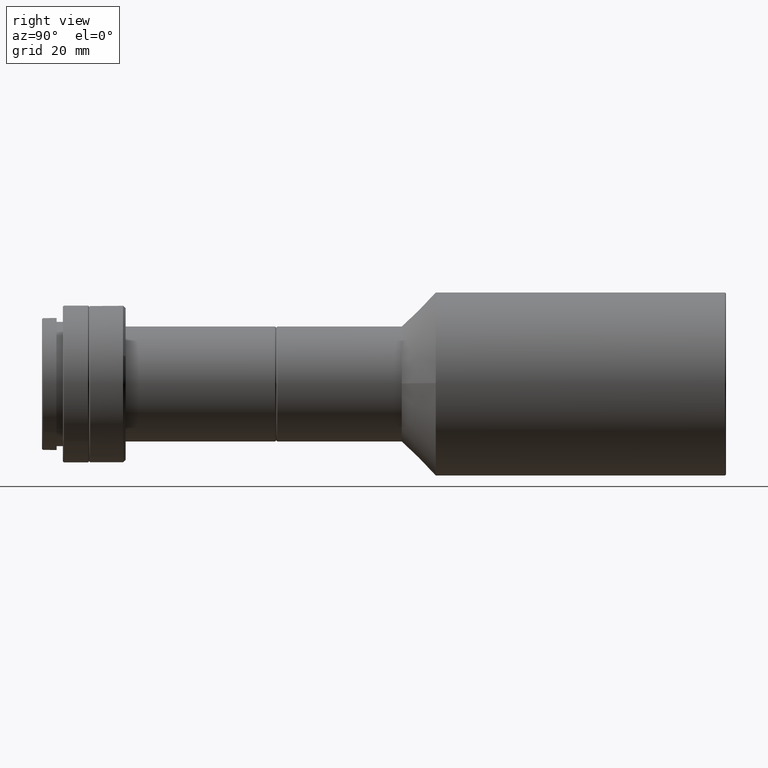
[diagram: clean part render]
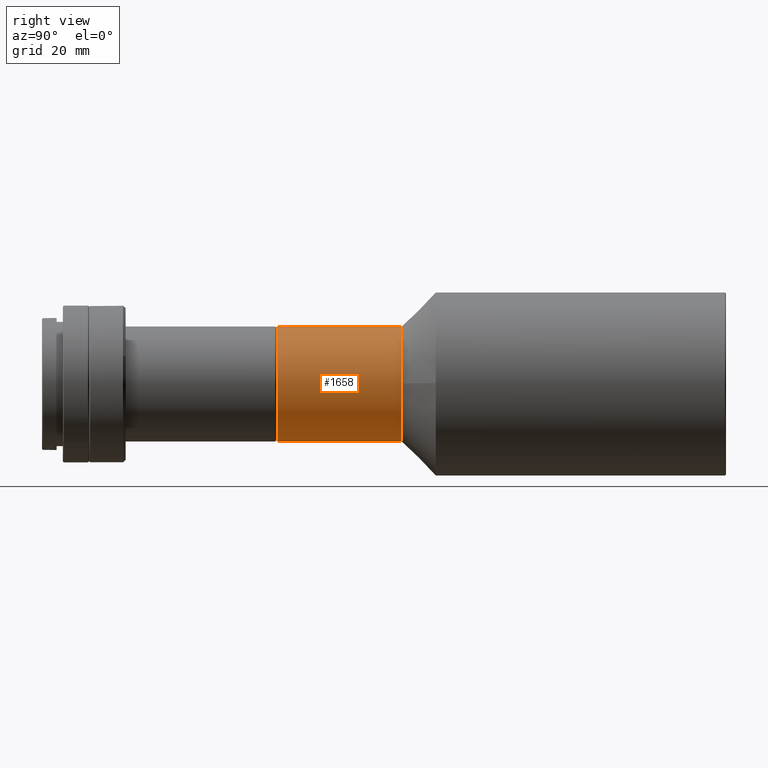
[diagram: same view with one face highlighted and labeled with its STEP entity id]
A machine part, right view. The second image highlights one B-rep face of the part: STEP entity #1658.
In plain terms, the highlighted cylindrical surface (partial cylindrical patch) has radius 11 mm, axis along (0, 1, 0).
Its self-contained STEP definition (entity closure, byte-faithful):
#104 = LINE ( 'NONE', #1856, #5434 ) ;
#116 = VERTEX_POINT ( 'NONE', #5007 ) ;
#460 = CIRCLE ( 'NONE', #2659, 11.00000000000000000 ) ;
#514 = ORIENTED_EDGE ( 'NONE', *, *, #2652, .T. ) ;
#527 = EDGE_CURVE ( 'NONE', #3474, #5341, #460, .T. ) ;
#563 = ORIENTED_EDGE ( 'NONE', *, *, #1106, .F. ) ;
#615 = CARTESIAN_POINT ( 'NONE',  ( -0.1103925021631599612, 62.79999999999999716, 10.99944605402773057 ) ) ;
#642 = VERTEX_POINT ( 'NONE', #1288 ) ;
#672 = DIRECTION ( 'NONE',  ( 0.000000000000000000, 1.000000000000000000, 0.000000000000000000 ) ) ;
#700 = DIRECTION ( 'NONE',  ( 0.000000000000000000, 1.000000000000000000, 0.000000000000000000 ) ) ;
#739 = DIRECTION ( 'NONE',  ( -0.01003568201483279881, 0.000000000000000000, 0.9999496412752481023 ) ) ;
#862 = VECTOR ( 'NONE', #2693, 1000.000000000000000 ) ;
#940 = CARTESIAN_POINT ( 'NONE',  ( 0.1103925021631629727, 38.80000000000000426, -10.99944605402772702 ) ) ;
#1106 = EDGE_CURVE ( 'NONE', #5341, #1355, #1399, .T. ) ;
#1141 = FACE_OUTER_BOUND ( 'NONE', #3845, .T. ) ;
#1288 = CARTESIAN_POINT ( 'NONE',  ( 10.99944605402773945, 39.00000000000001421, 0.1103925021631636527 ) ) ;
#1306 = DIRECTION ( 'NONE',  ( -0.01003568201483279881, 0.000000000000000000, 0.9999496412752481023 ) ) ;
#1355 = VERTEX_POINT ( 'NONE', #4368 ) ;
#1399 = CIRCLE ( 'NONE', #4599, 11.00000000000000000 ) ;
#1630 = ORIENTED_EDGE ( 'NONE', *, *, #3502, .T. ) ;
#1658 = ADVANCED_FACE ( 'NONE', ( #1141 ), #3760, .T. ) ;
#1732 = ORIENTED_EDGE ( 'NONE', *, *, #2675, .F. ) ;
#1856 = CARTESIAN_POINT ( 'NONE',  ( -0.1103925021631599612, 38.80000000000000426, 10.99944605402773057 ) ) ;
#2091 = DIRECTION ( 'NONE',  ( -0.01003568201483279881, 0.000000000000000000, 0.9999496412752481023 ) ) ;
#2160 = CARTESIAN_POINT ( 'NONE',  ( 8.250592294294199450E-16, 62.79999999999999716, 1.381180292636150134E-15 ) ) ;
#2448 = DIRECTION ( 'NONE',  ( -0.01003568201483279881, 0.000000000000000000, 0.9999496412752481023 ) ) ;
#2554 = ORIENTED_EDGE ( 'NONE', *, *, #527, .F. ) ;
#2652 = EDGE_CURVE ( 'NONE', #116, #1355, #5288, .T. ) ;
#2659 = AXIS2_PLACEMENT_3D ( 'NONE', #3769, #2930, #739 ) ;
#2675 = EDGE_CURVE ( 'NONE', #3253, #3474, #104, .T. ) ;
#2693 = DIRECTION ( 'NONE',  ( 0.000000000000000000, 1.000000000000000000, 0.000000000000000000 ) ) ;
#2930 = DIRECTION ( 'NONE',  ( 0.000000000000000000, 1.000000000000000000, 0.000000000000000000 ) ) ;
#3253 = VERTEX_POINT ( 'NONE', #5617 ) ;
#3474 = VERTEX_POINT ( 'NONE', #615 ) ;
#3502 = EDGE_CURVE ( 'NONE', #642, #116, #5123, .T. ) ;
#3656 = DIRECTION ( 'NONE',  ( 0.000000000000000000, 1.000000000000000000, 0.000000000000000000 ) ) ;
#3760 = CYLINDRICAL_SURFACE ( 'NONE', #5550, 11.00000000000000000 ) ;
#3769 = CARTESIAN_POINT ( 'NONE',  ( 8.250592294294199450E-16, 62.79999999999999716, 1.381180292636150134E-15 ) ) ;
#3843 = AXIS2_PLACEMENT_3D ( 'NONE', #4593, #672, #4930 ) ;
#3845 = EDGE_LOOP ( 'NONE', ( #1630, #514, #563, #2554, #1732, #3956 ) ) ;
#3897 = AXIS2_PLACEMENT_3D ( 'NONE', #5662, #5608, #2091 ) ;
#3902 = DIRECTION ( 'NONE',  ( 0.000000000000000000, 1.000000000000000000, 0.000000000000000000 ) ) ;
#3956 = ORIENTED_EDGE ( 'NONE', *, *, #4940, .T. ) ;
#4368 = CARTESIAN_POINT ( 'NONE',  ( 0.1103925021631629727, 62.79999999999999716, -10.99944605402772702 ) ) ;
#4593 = CARTESIAN_POINT ( 'NONE',  ( 8.250592294294199450E-16, 39.00000000000001421, 1.381180292636150134E-15 ) ) ;
#4599 = AXIS2_PLACEMENT_3D ( 'NONE', #2160, #3902, #1306 ) ;
#4625 = CARTESIAN_POINT ( 'NONE',  ( 8.250592294294199450E-16, 38.80000000000000426, 1.381180292636150134E-15 ) ) ;
#4930 = DIRECTION ( 'NONE',  ( -0.01003568201483279881, 0.000000000000000000, 0.9999496412752481023 ) ) ;
#4940 = EDGE_CURVE ( 'NONE', #3253, #642, #5634, .T. ) ;
#5007 = CARTESIAN_POINT ( 'NONE',  ( 0.1103925021631629727, 39.00000000000001421, -10.99944605402772702 ) ) ;
#5123 = CIRCLE ( 'NONE', #3843, 11.00000000000000000 ) ;
#5288 = LINE ( 'NONE', #940, #862 ) ;
#5341 = VERTEX_POINT ( 'NONE', #5379 ) ;
#5379 = CARTESIAN_POINT ( 'NONE',  ( 10.99944605402771991, 62.79999999999999716, 0.1103925021631634446 ) ) ;
#5434 = VECTOR ( 'NONE', #3656, 1000.000000000000000 ) ;
#5550 = AXIS2_PLACEMENT_3D ( 'NONE', #4625, #700, #2448 ) ;
#5608 = DIRECTION ( 'NONE',  ( 0.000000000000000000, 1.000000000000000000, 0.000000000000000000 ) ) ;
#5617 = CARTESIAN_POINT ( 'NONE',  ( -0.1103925021631599612, 39.00000000000001421, 10.99944605402773057 ) ) ;
#5634 = CIRCLE ( 'NONE', #3897, 11.00000000000000000 ) ;
#5662 = CARTESIAN_POINT ( 'NONE',  ( 8.250592294294199450E-16, 39.00000000000001421, 1.381180292636150134E-15 ) ) ;